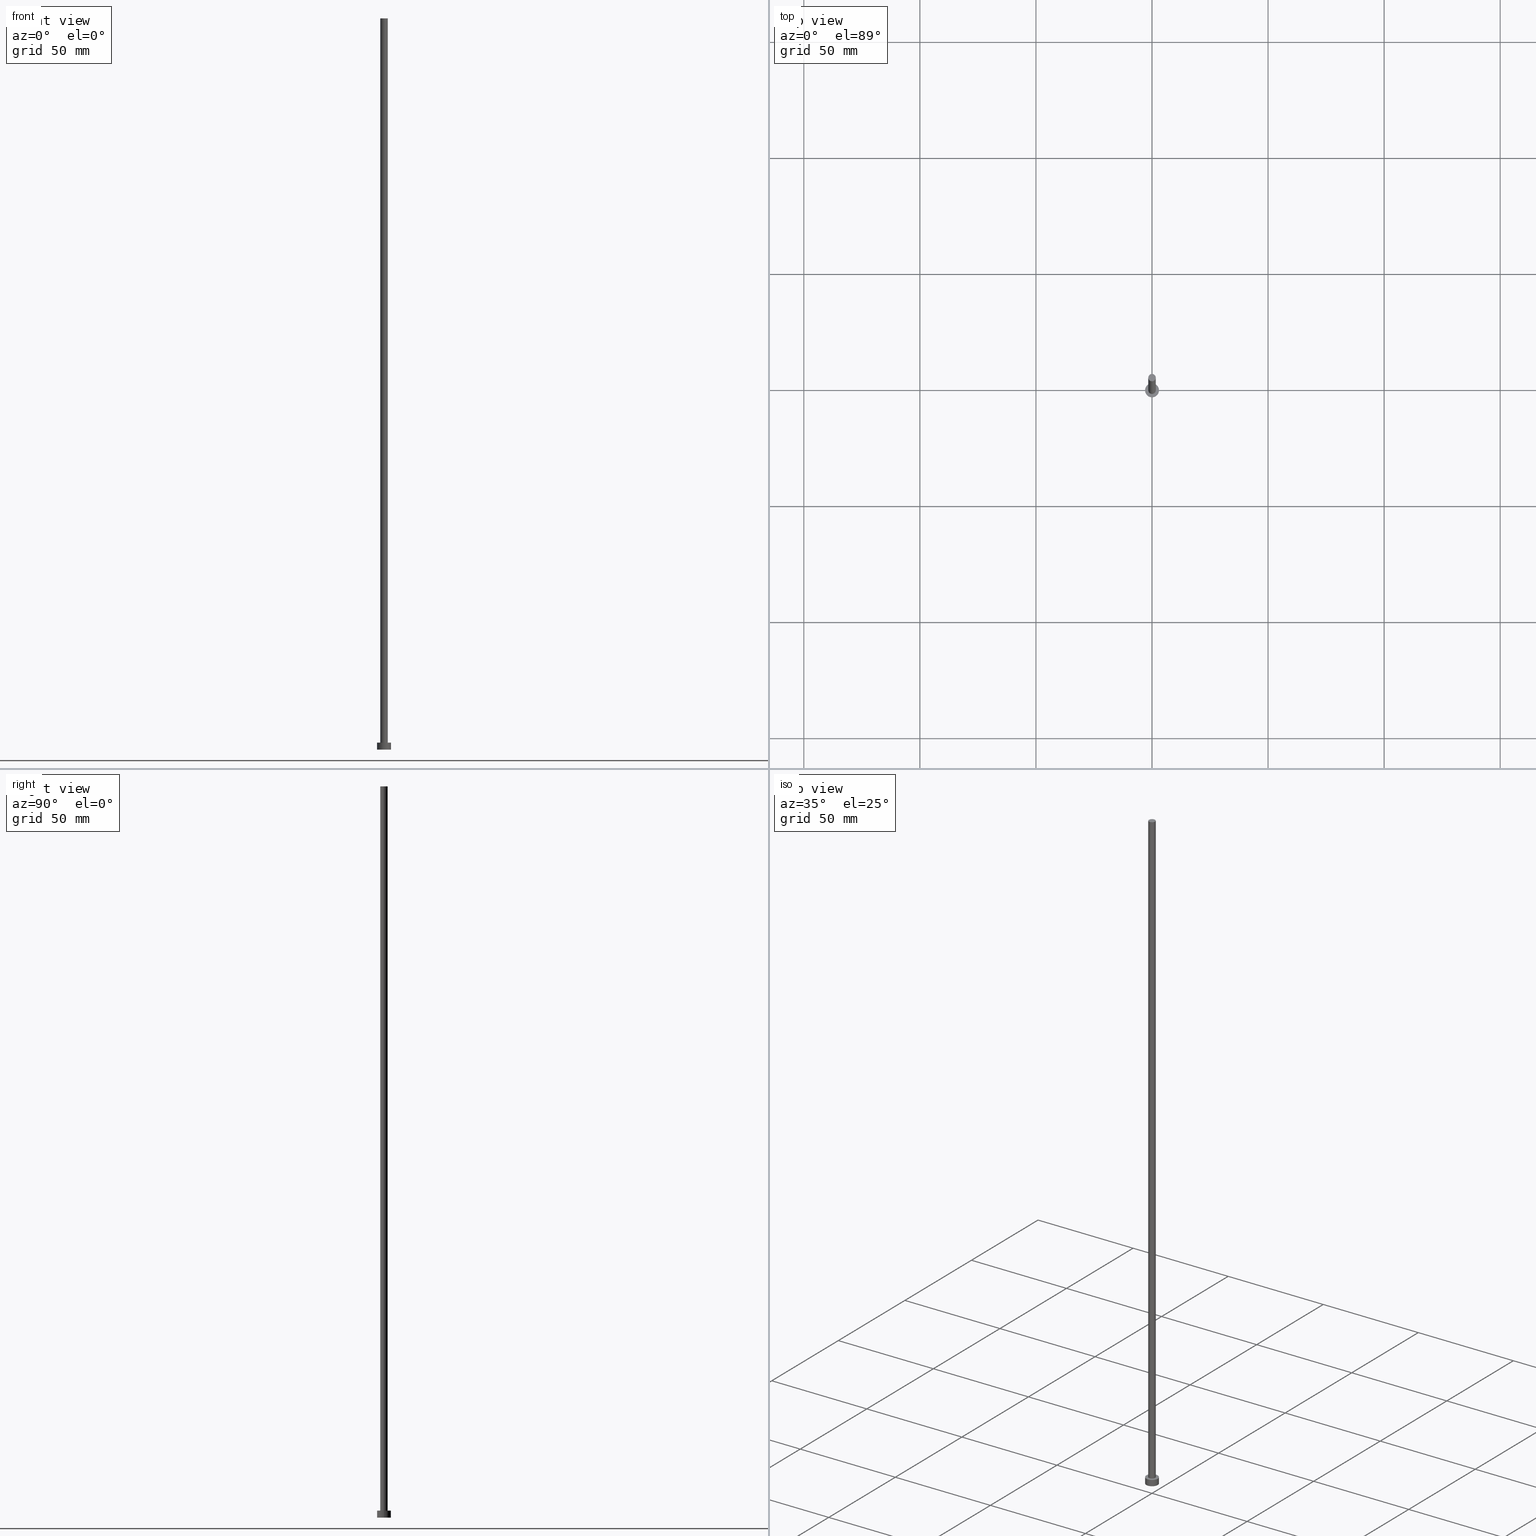
[diagram: canonical four-view strip — front | top / right | iso, engineering-drawing reading convention]
A machine part, canonical four-view strip (front | top / right | iso — engineering-drawing reading convention). The complete STEP part file that produces these views, byte-faithful:
ISO-10303-21;
HEADER;
FILE_DESCRIPTION (( 'STEP AP203' ),
    '1' );
FILE_NAME ('e88d.STEP',
    '2023-02-13T14:24:59',
    ( '' ),
    ( '' ),
    'SwSTEP 2.0',
    'SolidWorks 2019',
    '' );
FILE_SCHEMA (( 'CONFIG_CONTROL_DESIGN' ));
ENDSEC;

DATA;
#1 = SECURITY_CLASSIFICATION ( '', '', #104 ) ;
#2 = DATE_AND_TIME ( #81, #86 ) ;
#3 = EDGE_CURVE ( 'NONE', #160, #54, #62, .T. ) ;
#4 = APPROVAL_DATE_TIME ( #2, #229 ) ;
#5 = DATE_AND_TIME ( #177, #88 ) ;
#6 = ORGANIZATION ( 'NEUR�EN�', 'NEUR�EN�', '' ) ;
#7 = EDGE_CURVE ( 'NONE', #107, #240, #145, .T. ) ;
#8 = APPROVAL_STATUS ( 'not_yet_approved' ) ;
#9 = CIRCLE ( 'NONE', #51, 1.600000000000000089 ) ;
#10 = CARTESIAN_POINT ( 'NONE',  ( 0.000000000000000000, 0.000000000000000000, 3.000000000000000000 ) ) ;
#11 = DIRECTION ( 'NONE',  ( 0.000000000000000000, 0.000000000000000000, 1.000000000000000000 ) ) ;
#12 = FACE_BOUND ( 'NONE', #71, .T. ) ;
#13 = CARTESIAN_POINT ( 'NONE',  ( 0.000000000000000000, 0.000000000000000000, 3.000000000000000000 ) ) ;
#14 = APPROVAL ( #43, 'NEUR�EN�' ) ;
#15 = ORIENTED_EDGE ( 'NONE', *, *, #103, .T. ) ;
#16 = AXIS2_PLACEMENT_3D ( 'NONE', #184, #165, #149 ) ;
#17 = AXIS2_PLACEMENT_3D ( 'NONE', #24, #85, #138 ) ;
#18 = CARTESIAN_POINT ( 'NONE',  ( 0.000000000000000000, 0.000000000000000000, 3.000000000000000000 ) ) ;
#19 = CARTESIAN_POINT ( 'NONE',  ( 1.600000000000000089, 1.959434878635765230E-16, 315.0000000000000000 ) ) ;
#20 = APPLICATION_PROTOCOL_DEFINITION ( 'international standard', 'config_control_design', 1994, #164 ) ;
#21 = AXIS2_PLACEMENT_3D ( 'NONE', #134, #154, #151 ) ;
#22 = COORDINATED_UNIVERSAL_TIME_OFFSET ( 1, 0, .AHEAD. ) ;
#23 = DATE_TIME_ROLE ( 'classification_date' ) ;
#24 = CARTESIAN_POINT ( 'NONE',  ( 0.000000000000000000, 0.000000000000000000, 0.000000000000000000 ) ) ;
#25 = AXIS2_PLACEMENT_3D ( 'NONE', #58, #173, #211 ) ;
#26 = PERSON_AND_ORGANIZATION ( #73, #6 ) ;
#27 = ORIENTED_EDGE ( 'NONE', *, *, #175, .T. ) ;
#28 = FACE_OUTER_BOUND ( 'NONE', #243, .T. ) ;
#29 = DIRECTION ( 'NONE',  ( 0.000000000000000000, 0.000000000000000000, 1.000000000000000000 ) ) ;
#30 = ORIENTED_EDGE ( 'NONE', *, *, #57, .T. ) ;
#31 = LOCAL_TIME ( 15, 24, 59.00000000000000000, #64 ) ;
#32 = ORIENTED_EDGE ( 'NONE', *, *, #175, .F. ) ;
#33 = CYLINDRICAL_SURFACE ( 'NONE', #21, 3.000000000000000444 ) ;
#34 = VECTOR ( 'NONE', #37, 1000.000000000000000 ) ;
#35 = ADVANCED_FACE ( 'NONE', ( #50 ), #225, .T. ) ;
#36 = DIRECTION ( 'NONE',  ( 0.000000000000000000, 0.000000000000000000, 1.000000000000000000 ) ) ;
#37 = DIRECTION ( 'NONE',  ( -0.000000000000000000, -0.000000000000000000, -1.000000000000000000 ) ) ;
#38 = CC_DESIGN_PERSON_AND_ORGANIZATION_ASSIGNMENT ( #26, #158, ( #1 ) ) ;
#39 = DIRECTION ( 'NONE',  ( -0.000000000000000000, -0.000000000000000000, -1.000000000000000000 ) ) ;
#40 = APPROVAL_STATUS ( 'not_yet_approved' ) ;
#41 = APPROVAL_DATE_TIME ( #137, #120 ) ;
#42 = CC_DESIGN_PERSON_AND_ORGANIZATION_ASSIGNMENT ( #194, #101, ( #87 ) ) ;
#43 = APPROVAL_STATUS ( 'not_yet_approved' ) ;
#44 = PERSON_AND_ORGANIZATION ( #73, #6 ) ;
#45 = AXIS2_PLACEMENT_3D ( 'NONE', #116, #39, #119 ) ;
#46 = VECTOR ( 'NONE', #206, 1000.000000000000000 ) ;
#47 = ADVANCED_FACE ( 'NONE', ( #12, #28 ), #92, .T. ) ;
#48 = ORIENTED_EDGE ( 'NONE', *, *, #60, .T. ) ;
#49 = UNCERTAINTY_MEASURE_WITH_UNIT (LENGTH_MEASURE( 1.000000000000000082E-05 ), #76, 'distance_accuracy_value', 'NONE');
#50 = FACE_OUTER_BOUND ( 'NONE', #163, .T. ) ;
#51 = AXIS2_PLACEMENT_3D ( 'NONE', #188, #36, #231 ) ;
#52 = ORIENTED_EDGE ( 'NONE', *, *, #83, .F. ) ;
#53 = ORIENTED_EDGE ( 'NONE', *, *, #252, .T. ) ;
#54 = VERTEX_POINT ( 'NONE', #150 ) ;
#55 = LINE ( 'NONE', #232, #34 ) ;
#56 =( NAMED_UNIT ( * ) PLANE_ANGLE_UNIT ( ) SI_UNIT ( $, .RADIAN. ) );
#57 = EDGE_CURVE ( 'NONE', #54, #160, #234, .T. ) ;
#58 = CARTESIAN_POINT ( 'NONE',  ( 0.000000000000000000, 0.000000000000000000, 0.000000000000000000 ) ) ;
#59 = CARTESIAN_POINT ( 'NONE',  ( -3.000000000000000444, 0.000000000000000000, 3.000000000000000000 ) ) ;
#60 = EDGE_CURVE ( 'NONE', #75, #205, #222, .T. ) ;
#61 = DIRECTION ( 'NONE',  ( 0.000000000000000000, 0.000000000000000000, 1.000000000000000000 ) ) ;
#62 = CIRCLE ( 'NONE', #200, 1.600000000000000089 ) ;
#63 = PERSON_AND_ORGANIZATION ( #73, #6 ) ;
#64 = COORDINATED_UNIVERSAL_TIME_OFFSET ( 1, 0, .AHEAD. ) ;
#65 = PRODUCT_RELATED_PRODUCT_CATEGORY ( 'detail', '', ( #183 ) ) ;
#66 = VECTOR ( 'NONE', #98, 1000.000000000000000 ) ;
#67 = EDGE_LOOP ( 'NONE', ( #204, #27, #130, #144 ) ) ;
#68 = ORIENTED_EDGE ( 'NONE', *, *, #146, .T. ) ;
#69 = AXIS2_PLACEMENT_3D ( 'NONE', #254, #79, #117 ) ;
#70 = ORIENTED_EDGE ( 'NONE', *, *, #252, .F. ) ;
#71 = EDGE_LOOP ( 'NONE', ( #70, #141 ) ) ;
#72 = CC_DESIGN_PERSON_AND_ORGANIZATION_ASSIGNMENT ( #63, #102, ( #93 ) ) ;
#73 = PERSON ( 'NEUR�EN�', 'NEUR�EN�', 'NEUR�EN�', ('NEUR�EN�'), ('NEUR�EN�'), ('NEUR�EN�') ) ;
#74 = CARTESIAN_POINT ( 'NONE',  ( 0.000000000000000000, 0.000000000000000000, 315.0000000000000000 ) ) ;
#75 = VERTEX_POINT ( 'NONE', #94 ) ;
#76 =( LENGTH_UNIT ( ) NAMED_UNIT ( * ) SI_UNIT ( .MILLI., .METRE. ) );
#77 = DIRECTION ( 'NONE',  ( 0.000000000000000000, 0.000000000000000000, 1.000000000000000000 ) ) ;
#78 = AXIS2_PLACEMENT_3D ( 'NONE', #128, #29, #110 ) ;
#79 = DIRECTION ( 'NONE',  ( -0.000000000000000000, -0.000000000000000000, -1.000000000000000000 ) ) ;
#80 = FACE_OUTER_BOUND ( 'NONE', #129, .T. ) ;
#81 = CALENDAR_DATE ( 2023, 13, 2 ) ;
#82 = VECTOR ( 'NONE', #95, 1000.000000000000000 ) ;
#83 = EDGE_CURVE ( 'NONE', #240, #75, #249, .T. ) ;
#84 = COORDINATED_UNIVERSAL_TIME_OFFSET ( 1, 0, .AHEAD. ) ;
#85 = DIRECTION ( 'NONE',  ( 0.000000000000000000, 0.000000000000000000, 1.000000000000000000 ) ) ;
#86 = LOCAL_TIME ( 15, 24, 59.00000000000000000, #84 ) ;
#87 = PRODUCT_DEFINITION ( 'NEZN�M�', '', #93, #91 ) ;
#88 = LOCAL_TIME ( 15, 24, 59.00000000000000000, #217 ) ;
#89 = DIRECTION ( 'NONE',  ( 1.000000000000000000, 0.000000000000000000, 0.000000000000000000 ) ) ;
#90 = DIRECTION ( 'NONE',  ( 1.000000000000000000, 0.000000000000000000, 0.000000000000000000 ) ) ;
#91 = DESIGN_CONTEXT ( 'detailed design', #164, 'design' ) ;
#92 = PLANE ( 'NONE',  #196 ) ;
#93 = PRODUCT_DEFINITION_FORMATION_WITH_SPECIFIED_SOURCE ( 'LIBOVOLN�', '', #183, .NOT_KNOWN. ) ;
#94 = CARTESIAN_POINT ( 'NONE',  ( 3.000000000000000444, 3.673940397442060361E-16, 0.000000000000000000 ) ) ;
#95 = DIRECTION ( 'NONE',  ( -0.000000000000000000, -0.000000000000000000, -1.000000000000000000 ) ) ;
#96 = EDGE_CURVE ( 'NONE', #54, #131, #112, .T. ) ;
#97 = CARTESIAN_POINT ( 'NONE',  ( 0.000000000000000000, 0.000000000000000000, 3.000000000000000000 ) ) ;
#98 = DIRECTION ( 'NONE',  ( -0.000000000000000000, -0.000000000000000000, -1.000000000000000000 ) ) ;
#99 = DIRECTION ( 'NONE',  ( -1.000000000000000000, 0.000000000000000000, 0.000000000000000000 ) ) ;
#100 = DIRECTION ( 'NONE',  ( 1.000000000000000000, 0.000000000000000000, 0.000000000000000000 ) ) ;
#101 = PERSON_AND_ORGANIZATION_ROLE ( 'creator' ) ;
#102 = PERSON_AND_ORGANIZATION_ROLE ( 'design_supplier' ) ;
#103 = EDGE_CURVE ( 'NONE', #107, #205, #55, .T. ) ;
#104 = SECURITY_CLASSIFICATION_LEVEL ( 'unclassified' ) ;
#105 = COORDINATED_UNIVERSAL_TIME_OFFSET ( 1, 0, .AHEAD. ) ;
#106 = AXIS2_PLACEMENT_3D ( 'NONE', #170, #77, #100 ) ;
#107 = VERTEX_POINT ( 'NONE', #59 ) ;
#108 = CC_DESIGN_SECURITY_CLASSIFICATION ( #1, ( #93 ) ) ;
#109 = ORIENTED_EDGE ( 'NONE', *, *, #60, .F. ) ;
#110 = DIRECTION ( 'NONE',  ( 1.000000000000000000, 0.000000000000000000, -0.000000000000000000 ) ) ;
#111 = DIRECTION ( 'NONE',  ( 1.000000000000000000, 0.000000000000000000, -0.000000000000000000 ) ) ;
#112 = LINE ( 'NONE', #132, #82 ) ;
#113 = LINE ( 'NONE', #255, #66 ) ;
#114 = ADVANCED_FACE ( 'NONE', ( #230 ), #251, .T. ) ;
#115 = APPROVAL_PERSON_ORGANIZATION ( #44, #14, #239 ) ;
#116 = CARTESIAN_POINT ( 'NONE',  ( 0.000000000000000000, 0.000000000000000000, 315.0000000000000000 ) ) ;
#117 = DIRECTION ( 'NONE',  ( -1.000000000000000000, 0.000000000000000000, 0.000000000000000000 ) ) ;
#118 = MANIFOLD_SOLID_BREP ( 'P�idat vysunut�m3', #169 ) ;
#119 = DIRECTION ( 'NONE',  ( -1.000000000000000000, 0.000000000000000000, 0.000000000000000000 ) ) ;
#120 = APPROVAL ( #40, 'NEUR�EN�' ) ;
#121 = SHAPE_DEFINITION_REPRESENTATION ( #127, #189 ) ;
#122 = AXIS2_PLACEMENT_3D ( 'NONE', #18, #193, #99 ) ;
#123 = CALENDAR_DATE ( 2023, 13, 2 ) ;
#124 =( GEOMETRIC_REPRESENTATION_CONTEXT ( 3 ) GLOBAL_UNCERTAINTY_ASSIGNED_CONTEXT ( ( #49 ) ) GLOBAL_UNIT_ASSIGNED_CONTEXT ( ( #76, #56, #210 ) ) REPRESENTATION_CONTEXT ( 'NONE', 'WORKASPACE' ) );
#125 = AXIS2_PLACEMENT_3D ( 'NONE', #74, #11, #90 ) ;
#126 = EDGE_LOOP ( 'NONE', ( #32, #201, #147, #53 ) ) ;
#127 = PRODUCT_DEFINITION_SHAPE ( 'NONE', 'NONE',  #87 ) ;
#128 = CARTESIAN_POINT ( 'NONE',  ( 0.000000000000000000, 0.000000000000000000, 315.0000000000000000 ) ) ;
#129 = EDGE_LOOP ( 'NONE', ( #52, #224, #15, #68 ) ) ;
#130 = ORIENTED_EDGE ( 'NONE', *, *, #166, .T. ) ;
#131 = VERTEX_POINT ( 'NONE', #208 ) ;
#132 = CARTESIAN_POINT ( 'NONE',  ( -1.600000000000000089, 0.000000000000000000, 315.0000000000000000 ) ) ;
#133 = APPROVAL_PERSON_ORGANIZATION ( #136, #120, #236 ) ;
#134 = CARTESIAN_POINT ( 'NONE',  ( 0.000000000000000000, 0.000000000000000000, 3.000000000000000000 ) ) ;
#135 = DIRECTION ( 'NONE',  ( 1.000000000000000000, 0.000000000000000000, 0.000000000000000000 ) ) ;
#136 = PERSON_AND_ORGANIZATION ( #73, #6 ) ;
#137 = DATE_AND_TIME ( #216, #31 ) ;
#138 = DIRECTION ( 'NONE',  ( 1.000000000000000000, 0.000000000000000000, 0.000000000000000000 ) ) ;
#139 = ADVANCED_FACE ( 'NONE', ( #80 ), #190, .T. ) ;
#140 = APPROVAL_DATE_TIME ( #142, #14 ) ;
#141 = ORIENTED_EDGE ( 'NONE', *, *, #166, .F. ) ;
#142 = DATE_AND_TIME ( #123, #185 ) ;
#143 = CIRCLE ( 'NONE', #203, 1.600000000000000089 ) ;
#144 = ORIENTED_EDGE ( 'NONE', *, *, #96, .F. ) ;
#145 = CIRCLE ( 'NONE', #187, 3.000000000000000444 ) ;
#146 = EDGE_CURVE ( 'NONE', #205, #75, #245, .T. ) ;
#147 = ORIENTED_EDGE ( 'NONE', *, *, #96, .T. ) ;
#148 = EDGE_LOOP ( 'NONE', ( #246, #202, #48, #247 ) ) ;
#149 = DIRECTION ( 'NONE',  ( 1.000000000000000000, 0.000000000000000000, 0.000000000000000000 ) ) ;
#150 = CARTESIAN_POINT ( 'NONE',  ( -1.600000000000000089, 0.000000000000000000, 315.0000000000000000 ) ) ;
#151 = DIRECTION ( 'NONE',  ( -1.000000000000000000, 0.000000000000000000, 0.000000000000000000 ) ) ;
#152 = ADVANCED_FACE ( 'NONE', ( #153 ), #253, .F. ) ;
#153 = FACE_OUTER_BOUND ( 'NONE', #223, .T. ) ;
#154 = DIRECTION ( 'NONE',  ( -0.000000000000000000, -0.000000000000000000, -1.000000000000000000 ) ) ;
#155 = CARTESIAN_POINT ( 'NONE',  ( -3.000000000000000444, 0.000000000000000000, 0.000000000000000000 ) ) ;
#156 = ADVANCED_FACE ( 'NONE', ( #250 ), #33, .T. ) ;
#157 = APPROVAL_ROLE ( '' ) ;
#158 = PERSON_AND_ORGANIZATION_ROLE ( 'classification_officer' ) ;
#159 = ORIENTED_EDGE ( 'NONE', *, *, #7, .T. ) ;
#160 = VERTEX_POINT ( 'NONE', #19 ) ;
#161 = CC_DESIGN_APPROVAL ( #14, ( #87 ) ) ;
#162 = DIRECTION ( 'NONE',  ( 0.000000000000000000, 0.000000000000000000, 1.000000000000000000 ) ) ;
#163 = EDGE_LOOP ( 'NONE', ( #30, #219 ) ) ;
#164 = APPLICATION_CONTEXT ( 'configuration controlled 3d designs of mechanical parts and assemblies' ) ;
#165 = DIRECTION ( 'NONE',  ( 0.000000000000000000, 0.000000000000000000, 1.000000000000000000 ) ) ;
#166 = EDGE_CURVE ( 'NONE', #182, #131, #143, .T. ) ;
#167 = CC_DESIGN_APPROVAL ( #120, ( #1 ) ) ;
#168 = DIRECTION ( 'NONE',  ( 1.000000000000000000, 0.000000000000000000, 0.000000000000000000 ) ) ;
#169 = CLOSED_SHELL ( 'NONE', ( #244, #156, #139, #47, #152, #114, #35 ) ) ;
#170 = CARTESIAN_POINT ( 'NONE',  ( 0.000000000000000000, 0.000000000000000000, 0.000000000000000000 ) ) ;
#171 = CYLINDRICAL_SURFACE ( 'NONE', #45, 1.600000000000000089 ) ;
#172 = DIRECTION ( 'NONE',  ( 1.000000000000000000, 0.000000000000000000, 0.000000000000000000 ) ) ;
#173 = DIRECTION ( 'NONE',  ( 0.000000000000000000, 0.000000000000000000, 1.000000000000000000 ) ) ;
#174 = DIRECTION ( 'NONE',  ( 0.000000000000000000, 0.000000000000000000, 1.000000000000000000 ) ) ;
#175 = EDGE_CURVE ( 'NONE', #160, #182, #113, .T. ) ;
#176 = AXIS2_PLACEMENT_3D ( 'NONE', #192, #61, #135 ) ;
#177 = CALENDAR_DATE ( 2023, 13, 2 ) ;
#178 = PERSON_AND_ORGANIZATION_ROLE ( 'creator' ) ;
#179 = DATE_AND_TIME ( #238, #237 ) ;
#180 = CARTESIAN_POINT ( 'NONE',  ( 0.000000000000000000, 0.000000000000000000, 315.0000000000000000 ) ) ;
#181 = DIRECTION ( 'NONE',  ( 0.000000000000000000, 0.000000000000000000, 1.000000000000000000 ) ) ;
#182 = VERTEX_POINT ( 'NONE', #233 ) ;
#183 = PRODUCT ( 'e88d', 'e88d', '', ( #242 ) ) ;
#184 = CARTESIAN_POINT ( 'NONE',  ( 0.000000000000000000, 0.000000000000000000, 0.000000000000000000 ) ) ;
#185 = LOCAL_TIME ( 15, 24, 59.00000000000000000, #22 ) ;
#186 = ORIENTED_EDGE ( 'NONE', *, *, #146, .F. ) ;
#187 = AXIS2_PLACEMENT_3D ( 'NONE', #10, #226, #89 ) ;
#188 = CARTESIAN_POINT ( 'NONE',  ( 0.000000000000000000, 0.000000000000000000, 3.000000000000000000 ) ) ;
#189 = ADVANCED_BREP_SHAPE_REPRESENTATION ( 'e88d', ( #118, #17 ), #124 ) ;
#190 = CYLINDRICAL_SURFACE ( 'NONE', #122, 3.000000000000000444 ) ;
#191 = CC_DESIGN_APPROVAL ( #229, ( #93 ) ) ;
#192 = CARTESIAN_POINT ( 'NONE',  ( 0.000000000000000000, 0.000000000000000000, 3.000000000000000000 ) ) ;
#193 = DIRECTION ( 'NONE',  ( -0.000000000000000000, -0.000000000000000000, -1.000000000000000000 ) ) ;
#194 = PERSON_AND_ORGANIZATION ( #73, #6 ) ;
#195 = CC_DESIGN_PERSON_AND_ORGANIZATION_ASSIGNMENT ( #235, #178, ( #93 ) ) ;
#196 = AXIS2_PLACEMENT_3D ( 'NONE', #13, #181, #111 ) ;
#197 = DATE_TIME_ROLE ( 'creation_date' ) ;
#198 = PERSON_AND_ORGANIZATION_ROLE ( 'design_owner' ) ;
#199 = CC_DESIGN_DATE_AND_TIME_ASSIGNMENT ( #179, #23, ( #1 ) ) ;
#200 = AXIS2_PLACEMENT_3D ( 'NONE', #180, #162, #168 ) ;
#201 = ORIENTED_EDGE ( 'NONE', *, *, #57, .F. ) ;
#202 = ORIENTED_EDGE ( 'NONE', *, *, #83, .T. ) ;
#203 = AXIS2_PLACEMENT_3D ( 'NONE', #97, #174, #172 ) ;
#204 = ORIENTED_EDGE ( 'NONE', *, *, #3, .F. ) ;
#205 = VERTEX_POINT ( 'NONE', #155 ) ;
#206 = DIRECTION ( 'NONE',  ( -0.000000000000000000, -0.000000000000000000, -1.000000000000000000 ) ) ;
#207 = CIRCLE ( 'NONE', #176, 3.000000000000000444 ) ;
#208 = CARTESIAN_POINT ( 'NONE',  ( -1.600000000000000089, 0.000000000000000000, 3.000000000000000000 ) ) ;
#209 = EDGE_CURVE ( 'NONE', #240, #107, #207, .T. ) ;
#210 =( NAMED_UNIT ( * ) SI_UNIT ( $, .STERADIAN. ) SOLID_ANGLE_UNIT ( ) );
#211 = DIRECTION ( 'NONE',  ( 1.000000000000000000, 0.000000000000000000, -0.000000000000000000 ) ) ;
#212 = CC_DESIGN_DATE_AND_TIME_ASSIGNMENT ( #5, #197, ( #87 ) ) ;
#213 = CARTESIAN_POINT ( 'NONE',  ( 3.000000000000000444, 3.673940397442060361E-16, 3.000000000000000000 ) ) ;
#214 = FACE_OUTER_BOUND ( 'NONE', #67, .T. ) ;
#215 = PERSON_AND_ORGANIZATION ( #73, #6 ) ;
#216 = CALENDAR_DATE ( 2023, 13, 2 ) ;
#217 = COORDINATED_UNIVERSAL_TIME_OFFSET ( 1, 0, .AHEAD. ) ;
#218 = APPLICATION_PROTOCOL_DEFINITION ( 'international standard', 'config_control_design', 1994, #228 ) ;
#219 = ORIENTED_EDGE ( 'NONE', *, *, #3, .T. ) ;
#220 = PERSON_AND_ORGANIZATION ( #73, #6 ) ;
#221 = APPROVAL_PERSON_ORGANIZATION ( #220, #229, #157 ) ;
#222 = CIRCLE ( 'NONE', #16, 3.000000000000000444 ) ;
#223 = EDGE_LOOP ( 'NONE', ( #186, #109 ) ) ;
#224 = ORIENTED_EDGE ( 'NONE', *, *, #7, .F. ) ;
#225 = PLANE ( 'NONE',  #78 ) ;
#226 = DIRECTION ( 'NONE',  ( 0.000000000000000000, 0.000000000000000000, 1.000000000000000000 ) ) ;
#227 = CARTESIAN_POINT ( 'NONE',  ( 3.000000000000000444, 3.673940397442060361E-16, 3.000000000000000000 ) ) ;
#228 = APPLICATION_CONTEXT ( 'configuration controlled 3d designs of mechanical parts and assemblies' ) ;
#229 = APPROVAL ( #8, 'NEUR�EN�' ) ;
#230 = FACE_OUTER_BOUND ( 'NONE', #126, .T. ) ;
#231 = DIRECTION ( 'NONE',  ( 1.000000000000000000, 0.000000000000000000, 0.000000000000000000 ) ) ;
#232 = CARTESIAN_POINT ( 'NONE',  ( -3.000000000000000444, 0.000000000000000000, 3.000000000000000000 ) ) ;
#233 = CARTESIAN_POINT ( 'NONE',  ( 1.600000000000000089, 1.959434878635765230E-16, 3.000000000000000000 ) ) ;
#234 = CIRCLE ( 'NONE', #125, 1.600000000000000089 ) ;
#235 = PERSON_AND_ORGANIZATION ( #73, #6 ) ;
#236 = APPROVAL_ROLE ( '' ) ;
#237 = LOCAL_TIME ( 15, 24, 59.00000000000000000, #105 ) ;
#238 = CALENDAR_DATE ( 2023, 13, 2 ) ;
#239 = APPROVAL_ROLE ( '' ) ;
#240 = VERTEX_POINT ( 'NONE', #213 ) ;
#241 = CC_DESIGN_PERSON_AND_ORGANIZATION_ASSIGNMENT ( #215, #198, ( #183 ) ) ;
#242 = MECHANICAL_CONTEXT ( 'NONE', #228, 'mechanical' ) ;
#243 = EDGE_LOOP ( 'NONE', ( #159, #248 ) ) ;
#244 = ADVANCED_FACE ( 'NONE', ( #214 ), #171, .T. ) ;
#245 = CIRCLE ( 'NONE', #106, 3.000000000000000444 ) ;
#246 = ORIENTED_EDGE ( 'NONE', *, *, #209, .F. ) ;
#247 = ORIENTED_EDGE ( 'NONE', *, *, #103, .F. ) ;
#248 = ORIENTED_EDGE ( 'NONE', *, *, #209, .T. ) ;
#249 = LINE ( 'NONE', #227, #46 ) ;
#250 = FACE_OUTER_BOUND ( 'NONE', #148, .T. ) ;
#251 = CYLINDRICAL_SURFACE ( 'NONE', #69, 1.600000000000000089 ) ;
#252 = EDGE_CURVE ( 'NONE', #131, #182, #9, .T. ) ;
#253 = PLANE ( 'NONE',  #25 ) ;
#254 = CARTESIAN_POINT ( 'NONE',  ( 0.000000000000000000, 0.000000000000000000, 315.0000000000000000 ) ) ;
#255 = CARTESIAN_POINT ( 'NONE',  ( 1.600000000000000089, 1.959434878635765230E-16, 315.0000000000000000 ) ) ;
ENDSEC;
END-ISO-10303-21;
